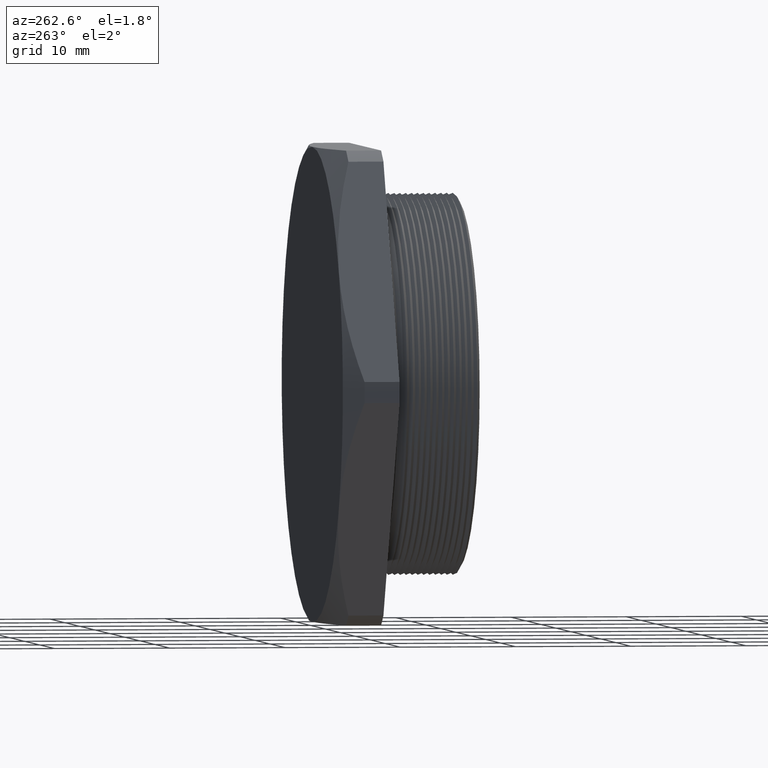
[diagram: clean part render]
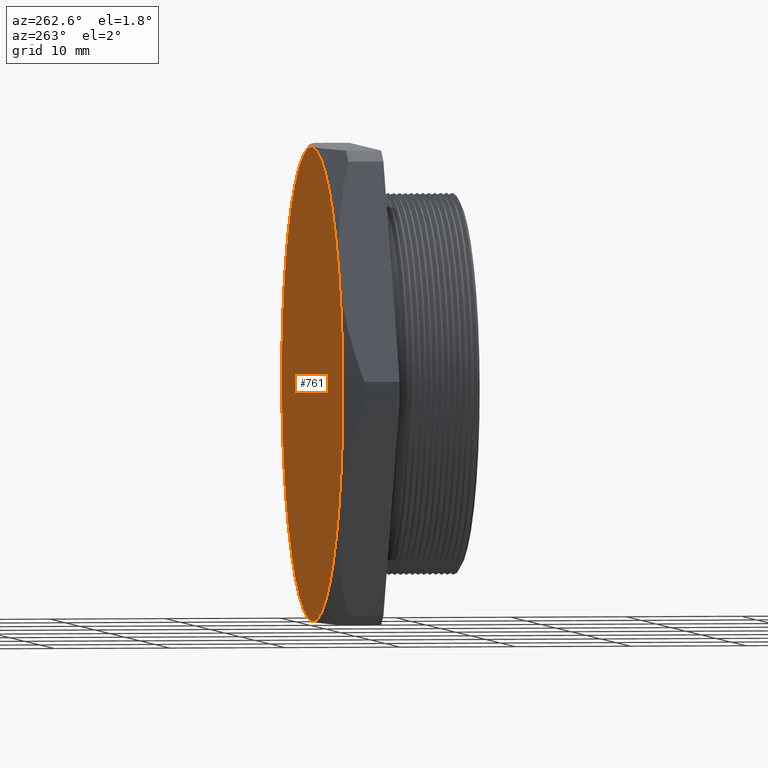
[diagram: same view with one face highlighted and labeled with its STEP entity id]
A machine part, auxiliary view. The second image highlights one B-rep face of the part: STEP entity #761.
In plain terms, the highlighted planar face has unit normal (0, -1, 0).
Its self-contained STEP definition (entity closure, byte-faithful):
#156 = VERTEX_POINT ( 'NONE', #1034 ) ;
#158 = VERTEX_POINT ( 'NONE', #1033 ) ;
#186 = VERTEX_POINT ( 'NONE', #1144 ) ;
#203 = VERTEX_POINT ( 'NONE', #1168 ) ;
#209 = VERTEX_POINT ( 'NONE', #1153 ) ;
#213 = VERTEX_POINT ( 'NONE', #1188 ) ;
#714 = EDGE_CURVE ( 'NONE', #158, #203, #2056, .T. ) ;
#719 = EDGE_CURVE ( 'NONE', #156, #158, #2115, .T. ) ;
#725 = EDGE_CURVE ( 'NONE', #203, #209, #2104, .T. ) ;
#730 = EDGE_CURVE ( 'NONE', #209, #186, #2093, .T. ) ;
#753 = ORIENTED_EDGE ( 'NONE', *, *, #714, .T. ) ;
#754 = ORIENTED_EDGE ( 'NONE', *, *, #725, .T. ) ;
#757 = EDGE_CURVE ( 'NONE', #186, #213, #2139, .T. ) ;
#761 = ADVANCED_FACE ( 'NONE', ( #2134 ), #2133, .F. ) ;
#762 = EDGE_LOOP ( 'NONE', ( #763, #764, #765, #766, #753, #754 ) ) ;
#763 = ORIENTED_EDGE ( 'NONE', *, *, #730, .T. ) ;
#764 = ORIENTED_EDGE ( 'NONE', *, *, #757, .T. ) ;
#765 = ORIENTED_EDGE ( 'NONE', *, *, #773, .T. ) ;
#766 = ORIENTED_EDGE ( 'NONE', *, *, #719, .T. ) ;
#773 = EDGE_CURVE ( 'NONE', #213, #156, #2126, .T. ) ;
#1033 = CARTESIAN_POINT ( 'NONE',  ( 0.0000000000000000000, 0.4899999999999999900, 0.8050000000000000500 ) ) ;
#1034 = CARTESIAN_POINT ( 'NONE',  ( -0.6971504500464731400, 0.4899999999999999900, 0.4025000000000003000 ) ) ;
#1144 = CARTESIAN_POINT ( 'NONE',  ( 0.0000000000000000000, 0.4899999999999999900, -0.8050000000000000500 ) ) ;
#1153 = CARTESIAN_POINT ( 'NONE',  ( 0.6971504500464730200, 0.4899999999999999900, -0.4024999999999998600 ) ) ;
#1168 = CARTESIAN_POINT ( 'NONE',  ( 0.6971504500464731400, 0.4899999999999999900, 0.4024999999999997500 ) ) ;
#1188 = CARTESIAN_POINT ( 'NONE',  ( -0.6971504500464731400, 0.4899999999999999900, -0.4024999999999997500 ) ) ;
#2053 = DIRECTION ( 'NONE',  ( 0.0000000000000000000, 0.0000000000000000000, 1.000000000000000000 ) ) ;
#2054 = DIRECTION ( 'NONE',  ( 0.0000000000000000000, 1.000000000000000000, 0.0000000000000000000 ) ) ;
#2055 = AXIS2_PLACEMENT_3D ( 'NONE', #2061, #2054, #2053 ) ;
#2056 = CIRCLE ( 'NONE', #2055, 0.8050000000000000500 ) ;
#2061 = CARTESIAN_POINT ( 'NONE',  ( 0.0000000000000000000, 0.4899999999999999900, 0.0000000000000000000 ) ) ;
#2085 = DIRECTION ( 'NONE',  ( 0.0000000000000000000, 0.0000000000000000000, 1.000000000000000000 ) ) ;
#2086 = DIRECTION ( 'NONE',  ( 0.0000000000000000000, 1.000000000000000000, 0.0000000000000000000 ) ) ;
#2087 = CARTESIAN_POINT ( 'NONE',  ( 0.0000000000000000000, 0.4899999999999999900, 0.0000000000000000000 ) ) ;
#2088 = AXIS2_PLACEMENT_3D ( 'NONE', #2087, #2086, #2085 ) ;
#2093 = CIRCLE ( 'NONE', #2088, 0.8050000000000000500 ) ;
#2096 = DIRECTION ( 'NONE',  ( 0.0000000000000000000, 0.0000000000000000000, 1.000000000000000000 ) ) ;
#2097 = DIRECTION ( 'NONE',  ( 0.0000000000000000000, 1.000000000000000000, 0.0000000000000000000 ) ) ;
#2098 = CARTESIAN_POINT ( 'NONE',  ( 0.0000000000000000000, 0.4899999999999999900, 0.0000000000000000000 ) ) ;
#2099 = AXIS2_PLACEMENT_3D ( 'NONE', #2098, #2097, #2096 ) ;
#2104 = CIRCLE ( 'NONE', #2099, 0.8050000000000000500 ) ;
#2107 = DIRECTION ( 'NONE',  ( 0.0000000000000000000, 0.0000000000000000000, 1.000000000000000000 ) ) ;
#2108 = DIRECTION ( 'NONE',  ( 0.0000000000000000000, 1.000000000000000000, 0.0000000000000000000 ) ) ;
#2109 = CARTESIAN_POINT ( 'NONE',  ( 0.0000000000000000000, 0.4899999999999999900, 0.0000000000000000000 ) ) ;
#2110 = AXIS2_PLACEMENT_3D ( 'NONE', #2109, #2108, #2107 ) ;
#2115 = CIRCLE ( 'NONE', #2110, 0.8050000000000000500 ) ;
#2118 = DIRECTION ( 'NONE',  ( 0.0000000000000000000, 0.0000000000000000000, 1.000000000000000000 ) ) ;
#2119 = DIRECTION ( 'NONE',  ( 0.0000000000000000000, 1.000000000000000000, 0.0000000000000000000 ) ) ;
#2120 = CARTESIAN_POINT ( 'NONE',  ( 0.0000000000000000000, 0.4899999999999999900, 0.0000000000000000000 ) ) ;
#2121 = AXIS2_PLACEMENT_3D ( 'NONE', #2120, #2119, #2118 ) ;
#2126 = CIRCLE ( 'NONE', #2121, 0.8050000000000000500 ) ;
#2129 = DIRECTION ( 'NONE',  ( 0.0000000000000000000, 0.0000000000000000000, -1.000000000000000000 ) ) ;
#2130 = DIRECTION ( 'NONE',  ( 0.0000000000000000000, -1.000000000000000000, 0.0000000000000000000 ) ) ;
#2131 = CARTESIAN_POINT ( 'NONE',  ( -0.9096499999999999600, 0.4899999999999999900, 0.0000000000000000000 ) ) ;
#2132 = AXIS2_PLACEMENT_3D ( 'NONE', #2131, #2130, #2129 ) ;
#2133 = PLANE ( 'NONE',  #2132 ) ;
#2134 = FACE_OUTER_BOUND ( 'NONE', #762, .T. ) ;
#2135 = DIRECTION ( 'NONE',  ( 0.0000000000000000000, 0.0000000000000000000, 1.000000000000000000 ) ) ;
#2136 = DIRECTION ( 'NONE',  ( 0.0000000000000000000, 1.000000000000000000, 0.0000000000000000000 ) ) ;
#2137 = CARTESIAN_POINT ( 'NONE',  ( 0.0000000000000000000, 0.4899999999999999900, 0.0000000000000000000 ) ) ;
#2138 = AXIS2_PLACEMENT_3D ( 'NONE', #2137, #2136, #2135 ) ;
#2139 = CIRCLE ( 'NONE', #2138, 0.8050000000000000500 ) ;